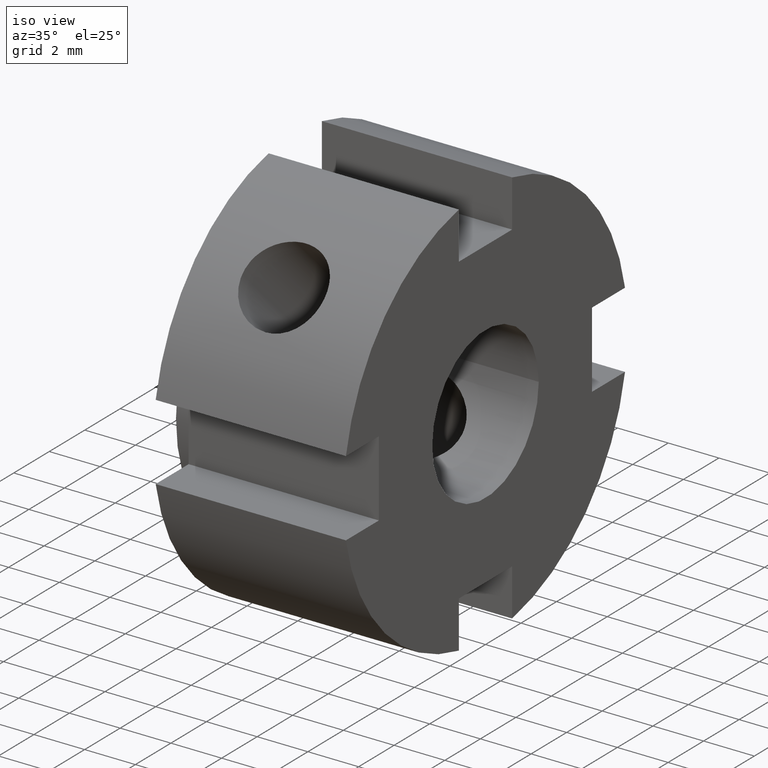
[diagram: clean part render]
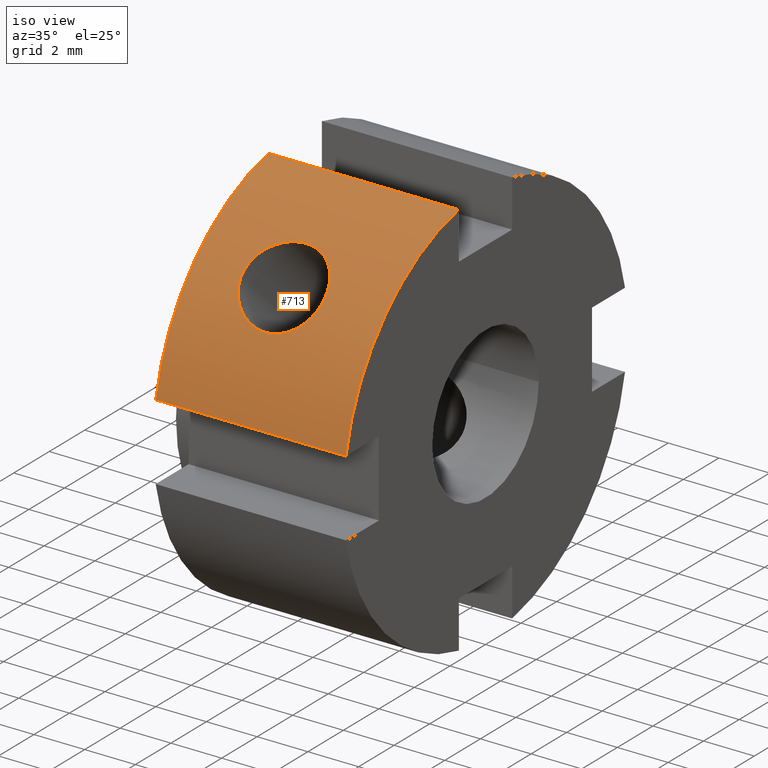
[diagram: same view with one face highlighted and labeled with its STEP entity id]
A machine part, iso view. The second image highlights one B-rep face of the part: STEP entity #713.
In plain terms, the highlighted cylindrical surface (partial cylindrical patch) has radius 8 mm, axis along (1, 0, 0).
Its self-contained STEP definition (entity closure, byte-faithful):
#73=CARTESIAN_POINT('',(3.999999999999997,-6.685730855899756,4.393290671292969));
#74=VERTEX_POINT('',#73);
#75=CARTESIAN_POINT('',(3.999999999999997,-6.685730855899755,4.393290671292974));
#76=CARTESIAN_POINT('',(3.795848321476706,-6.685730855899755,4.393290671292974));
#77=CARTESIAN_POINT('',(3.578488284890470,-6.663027102326740,4.428450602538509));
#78=CARTESIAN_POINT('',(3.179282563275749,-6.568239479192601,4.567858899072129));
#79=CARTESIAN_POINT('',(2.997386453570142,-6.495834302020944,4.671743977201038));
#80=CARTESIAN_POINT('',(2.710181848235453,-6.322150735349684,4.904229058570106));
#81=CARTESIAN_POINT('',(2.585519167527052,-6.209125946749404,5.048449307395188));
#82=CARTESIAN_POINT('',(2.419912820586964,-5.948819122218704,5.352722342950447));
#83=CARTESIAN_POINT('',(2.378999999999997,-5.801202755004278,5.512505743980476));
#84=CARTESIAN_POINT('',(2.378999999999997,-5.512505743980471,5.801202755004283));
#85=CARTESIAN_POINT('',(2.419912820586964,-5.352722342950442,5.948819122218708));
#86=CARTESIAN_POINT('',(2.585519167527052,-5.048449307395185,6.209125946749409));
#87=CARTESIAN_POINT('',(2.710181848235452,-4.904229058570102,6.322150735349688));
#88=CARTESIAN_POINT('',(2.997386453570141,-4.671743977201032,6.495834302020949));
#89=CARTESIAN_POINT('',(3.179282563275749,-4.567858899072124,6.568239479192605));
#90=CARTESIAN_POINT('',(3.578488284890469,-4.428450602538502,6.663027102326743));
#91=CARTESIAN_POINT('',(3.795848321476705,-4.393290671292967,6.685730855899760));
#92=CARTESIAN_POINT('',(4.204151678523288,-4.393290671292967,6.685730855899760));
#93=CARTESIAN_POINT('',(4.421511715109523,-4.428450602538502,6.663027102326743));
#94=CARTESIAN_POINT('',(4.820717436724244,-4.567858899072123,6.568239479192605));
#95=CARTESIAN_POINT('',(5.002613546429853,-4.671743977201032,6.495834302020951));
#96=CARTESIAN_POINT('',(5.289818151764542,-4.904229058570102,6.322150735349689));
#97=CARTESIAN_POINT('',(5.414480832472941,-5.048449307395183,6.209125946749410));
#98=CARTESIAN_POINT('',(5.580087179413029,-5.352722342950441,5.948819122218709));
#99=CARTESIAN_POINT('',(5.620999999999997,-5.512505743980471,5.801202755004285));
#100=CARTESIAN_POINT('',(5.620999999999997,-5.801202755004278,5.512505743980477));
#101=CARTESIAN_POINT('',(5.580087179413030,-5.948819122218703,5.352722342950448));
#102=CARTESIAN_POINT('',(5.414480832472942,-6.209125946749404,5.048449307395190));
#103=CARTESIAN_POINT('',(5.289818151764542,-6.322150735349684,4.904229058570106));
#104=CARTESIAN_POINT('',(5.002613546429853,-6.495834302020944,4.671743977201038));
#105=CARTESIAN_POINT('',(4.820717436724245,-6.568239479192601,4.567858899072130));
#106=CARTESIAN_POINT('',(4.421511715109525,-6.663027102326740,4.428450602538509));
#107=CARTESIAN_POINT('',(4.204151678523289,-6.685730855899754,4.393290671292974));
#108=CARTESIAN_POINT('',(3.999999999999997,-6.685730855899754,4.393290671292974));
#109=B_SPLINE_CURVE_WITH_KNOTS('',3,(#75,#76,#77,#78,#79,#80,#81,#82,#83,#84,#85,#86,#87,#88,#89,#90,#91,#92,#93,#94,#95,#96,#97,#98,#99,#100,#101,#102,#103,#104,#105,#106,#107,#108),.UNSPECIFIED.,.T.,.U.,(4,2,2,2,2,2,2,2,2,2,2,2,2,2,2,2,4),(0.0,0.061245503556987,0.122491007113975,0.183732891374941,0.244974775635908,0.306216659896874,0.367458544157841,0.428704047714828,0.489949551271816,0.551195054828803,0.612440558385791,0.673682442646757,0.734924326907724,0.796166211168690,0.857408095429657,0.918653598986644,0.979899102543632),.UNSPECIFIED.);
#110=EDGE_CURVE('',#74,#74,#109,.T.);
#361=CARTESIAN_POINT('',(0.499999999999998,-7.858116822750851,1.500000000000001));
#362=VERTEX_POINT('',#361);
#377=CARTESIAN_POINT('',(7.999999999999998,-7.858116822750851,1.500000000000001));
#378=VERTEX_POINT('',#377);
#385=CARTESIAN_POINT('',(0.499999999999998,-7.858116822750851,1.500000000000001));
#386=DIRECTION('',(1.0,0.0,0.0));
#387=VECTOR('',#386,7.500000000000000);
#388=LINE('',#385,#387);
#389=EDGE_CURVE('',#362,#378,#388,.T.);
#509=CARTESIAN_POINT('',(0.499999999999998,-1.500000000000000,7.858116822750851));
#510=VERTEX_POINT('',#509);
#519=CARTESIAN_POINT('',(7.999999999999998,-1.499999999999999,7.858116822750851));
#520=VERTEX_POINT('',#519);
#521=CARTESIAN_POINT('',(7.999999999999998,-1.500000000000000,7.858116822750851));
#522=DIRECTION('',(-1.0,0.0,0.0));
#523=VECTOR('',#522,7.500000000000000);
#524=LINE('',#521,#523);
#525=EDGE_CURVE('',#520,#510,#524,.T.);
#623=CARTESIAN_POINT('',(0.499999999999998,0.0,0.0));
#624=DIRECTION('',(1.0,0.0,0.0));
#625=DIRECTION('',(0.0,1.0,0.0));
#626=AXIS2_PLACEMENT_3D('',#623,#624,#625);
#627=CIRCLE('',#626,7.999999999999996);
#628=EDGE_CURVE('',#510,#362,#627,.T.);
#693=CARTESIAN_POINT('',(4.249999999999998,0.0,0.0));
#694=DIRECTION('',(1.0,0.0,0.0));
#695=DIRECTION('',(0.0,1.0,0.0));
#696=AXIS2_PLACEMENT_3D('',#693,#694,#695);
#697=CYLINDRICAL_SURFACE('',#696,7.999999999999996);
#698=ORIENTED_EDGE('',*,*,#389,.T.);
#699=CARTESIAN_POINT('',(7.999999999999998,0.0,0.0));
#700=DIRECTION('',(1.0,0.0,0.0));
#701=DIRECTION('',(0.0,1.0,0.0));
#702=AXIS2_PLACEMENT_3D('',#699,#700,#701);
#703=CIRCLE('',#702,7.999999999999997);
#704=EDGE_CURVE('',#520,#378,#703,.T.);
#705=ORIENTED_EDGE('',*,*,#704,.F.);
#706=ORIENTED_EDGE('',*,*,#525,.T.);
#707=ORIENTED_EDGE('',*,*,#628,.T.);
#708=EDGE_LOOP('',(#698,#705,#706,#707));
#709=FACE_OUTER_BOUND('',#708,.T.);
#710=ORIENTED_EDGE('',*,*,#110,.T.);
#711=EDGE_LOOP('',(#710));
#712=FACE_BOUND('',#711,.T.);
#713=ADVANCED_FACE('',(#709,#712),#697,.T.);